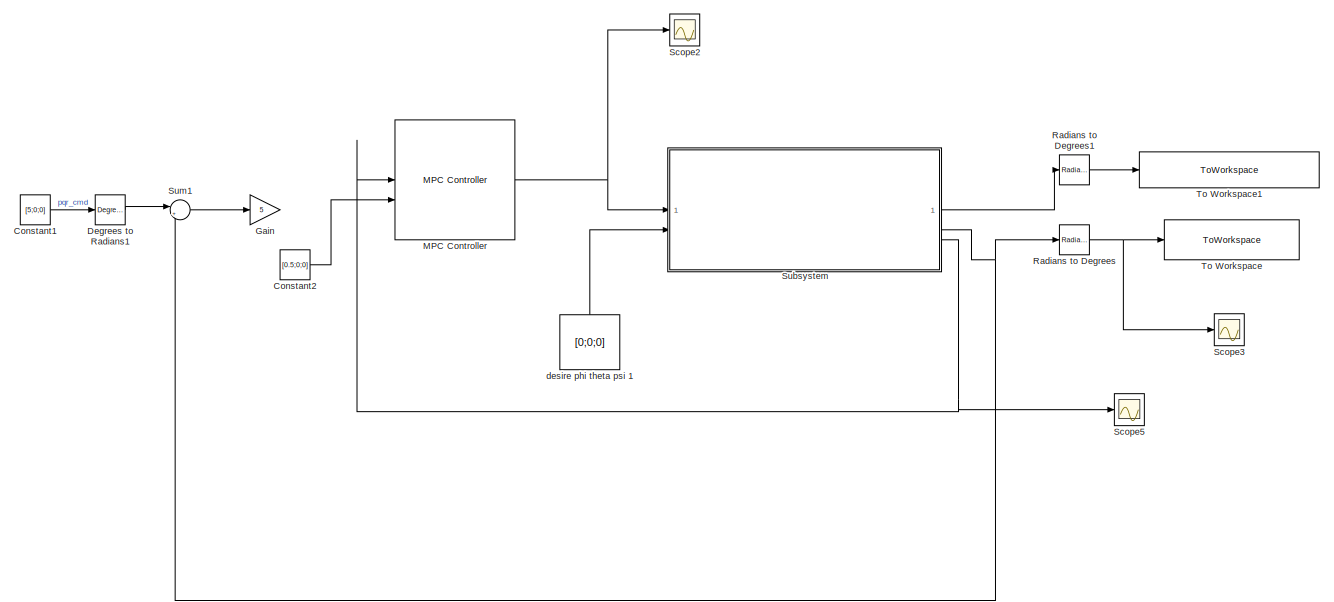
[diagram: root canvas - part 1/2, top left region]
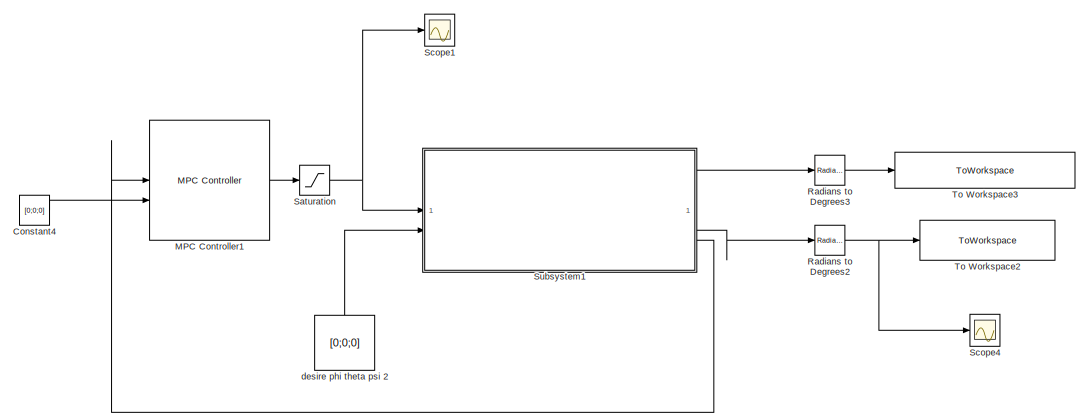
[diagram: root canvas - part 2/2, bottom right region]
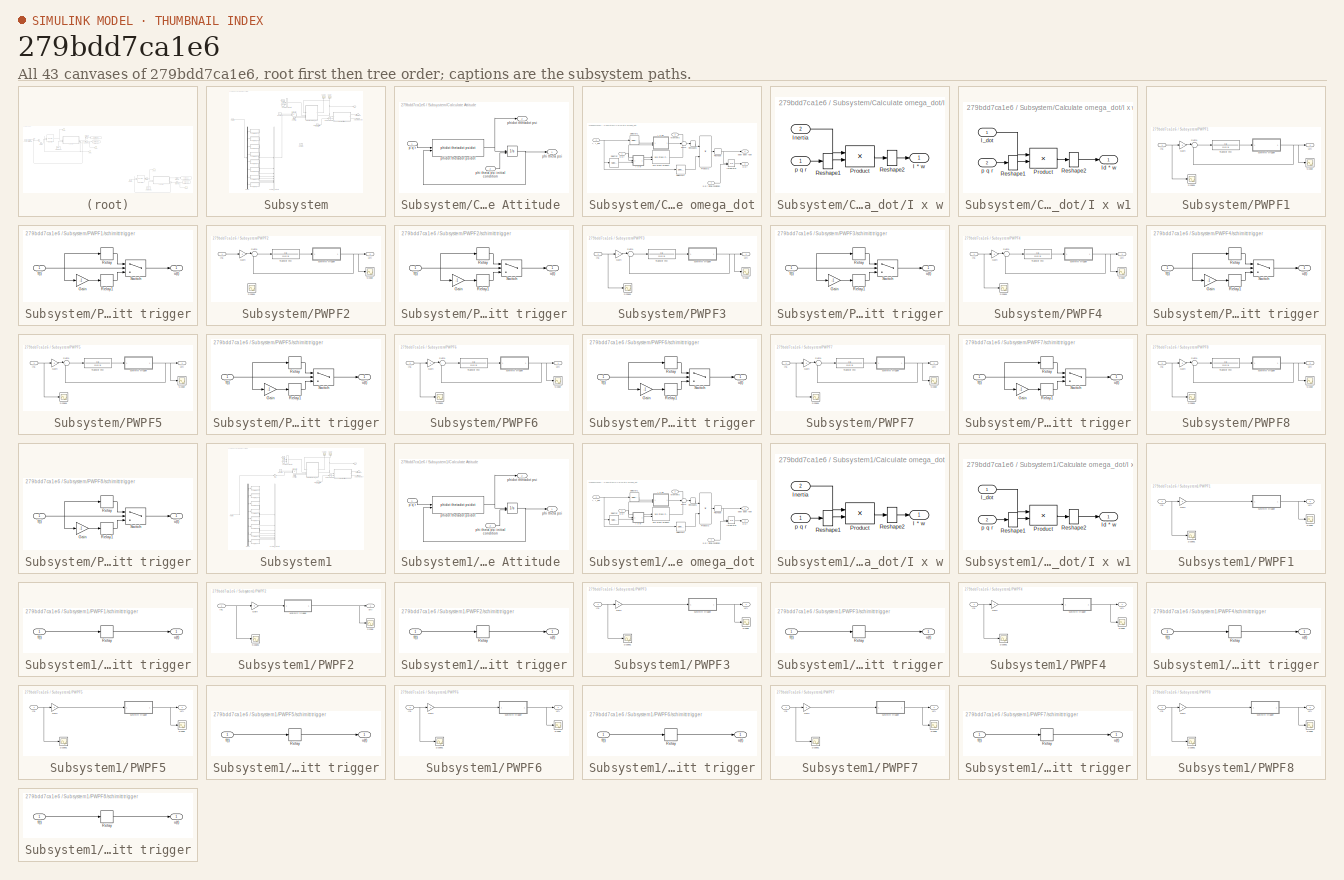
[diagram: thumbnail index - all 43 canvases of the model, root first then tree order]
MODEL slx_279bdd7ca1e6
KIND model
CONFIG AbsTol = auto
CONFIG EnableMultiTasking = off
CONFIG FixedStep = auto
CONFIG MaxStep = auto
CONFIG MinStep = auto
CONFIG RelTol = 1e-3
CONFIG SampleTimeConstraint = Unconstrained
CONFIG SolverName = VariableStepAuto
CONFIG StartTime = 0.0
CONFIG StopTime = 10.0
BLOCK [Constant] Constant1
  Commented = on
  Value = [5;0;0]
BLOCK [Constant] Constant2
  Commented = on
  Value = [0.5;0;0]
BLOCK [Constant] Constant4
  Value = [0;0;0]
BLOCK [Reference] Degrees to Radians1  REF=simulink_extras/Transformations/Degrees to
Radians
  Commented = on
  SourceBlock = simulink_extras/Transformations/Degrees to\nRadians
  SourceType = DegreesToRadians
BLOCK [Gain] Gain
  Commented = on
  Gain = 5
BLOCK [Reference] MPC Controller  REF=mpclib/MPC Controller  (lib defined in mdl_ae329e0e0455)
  Commented = on
  SCDEnableBlockLinearizationSpecification = on
  SourceBlock = mpclib/MPC Controller
  SourceType = MPC
BLOCK [Reference] MPC Controller1  REF=mpclib/MPC Controller  (lib defined in mdl_ae329e0e0455)
  SCDEnableBlockLinearizationSpecification = on
  SourceBlock = mpclib/MPC Controller
  SourceType = MPC
BLOCK [Reference] Radians to Degrees  REF=simulink_extras/Transformations/Radians
to Degrees
  Commented = on
  SourceBlock = simulink_extras/Transformations/Radians\nto Degrees
  SourceType = RadiansToDegrees
BLOCK [Reference] Radians to Degrees1  REF=simulink_extras/Transformations/Radians
to Degrees
  Commented = on
  SourceBlock = simulink_extras/Transformations/Radians\nto Degrees
  SourceType = RadiansToDegrees
BLOCK [Reference] Radians to Degrees2  REF=simulink_extras/Transformations/Radians
to Degrees
  SourceBlock = simulink_extras/Transformations/Radians\nto Degrees
  SourceType = RadiansToDegrees
BLOCK [Reference] Radians to Degrees3  REF=simulink_extras/Transformations/Radians
to Degrees
  SourceBlock = simulink_extras/Transformations/Radians\nto Degrees
  SourceType = RadiansToDegrees
BLOCK [Saturate] Saturation
  LowerLimit = 0
  UpperLimit = 10
BLOCK [Scope] Scope1
  Floating = off
  NumInputPorts = 1
  ScopeSpecificationString = Simulink.scopes.TimeScopeBlockCfg('CurrentConfiguration', extmgr.ConfigurationSet(extmgr.Configuration('Core','General UI',true),extmgr.Configuration('Core','Source UI',true),extmgr.Configuration('Sources','WiredSimulink',true,'DataLoggingVariableName','ScopeData3'),extmgr.Configuration('Visuals','Time Domain',true,'SerializedDisplays',{struct('MinYLimReal','-1.00000','MaxYLimReal','1.00000','YLab...<+1552ch>
BLOCK [Scope] Scope2
  Commented = on
  Floating = off
  NumInputPorts = 1
  ScopeSpecificationString = Simulink.scopes.TimeScopeBlockCfg('CurrentConfiguration', extmgr.ConfigurationSet(extmgr.Configuration('Core','General UI',true),extmgr.Configuration('Core','Source UI',true),extmgr.Configuration('Sources','WiredSimulink',true,'DataLoggingVariableName','ScopeData1'),extmgr.Configuration('Visuals','Time Domain',true,'SerializedDisplays',{struct('MinYLimReal','-0.87303','MaxYLimReal','7.85725','YLab...<+1533ch>
BLOCK [Scope] Scope3
  Commented = on
  Floating = off
  NumInputPorts = 1
  ScopeSpecificationString = Simulink.scopes.TimeScopeBlockCfg('CurrentConfiguration', extmgr.ConfigurationSet(extmgr.Configuration('Core','General UI',true),extmgr.Configuration('Core','Source UI',true),extmgr.Configuration('Sources','WiredSimulink',true,'DataLoggingVariableName','ScopeData2'),extmgr.Configuration('Visuals','Time Domain',true,'SerializedDisplays',{struct('MinYLimReal','-605.50818','MaxYLimReal','113.08721','...<+1437ch>
BLOCK [Scope] Scope4
  Floating = off
  NumInputPorts = 1
  ScopeSpecificationString = Simulink.scopes.TimeScopeBlockCfg('CurrentConfiguration', extmgr.ConfigurationSet(extmgr.Configuration('Core','General UI',true),extmgr.Configuration('Core','Source UI',true),extmgr.Configuration('Sources','WiredSimulink',true,'DataLoggingVariableName','ScopeData6'),extmgr.Configuration('Visuals','Time Domain',true,'SerializedDisplays',{struct('MinYLimReal','-1.00000','MaxYLimReal','1.00000','YLab...<+1449ch>
BLOCK [Scope] Scope5
  Commented = on
  Floating = off
  NumInputPorts = 1
  ScopeSpecificationString = Simulink.scopes.TimeScopeBlockCfg('CurrentConfiguration', extmgr.ConfigurationSet(extmgr.Configuration('Core','General UI',true),extmgr.Configuration('Core','Source UI',true),extmgr.Configuration('Sources','WiredSimulink',true,'DataLoggingVariableName','ScopeData7'),extmgr.Configuration('Visuals','Time Domain',true,'SerializedDisplays',{struct('MinYLimReal','-1.30494','MaxYLimReal','1.33719','YLab...<+1431ch>
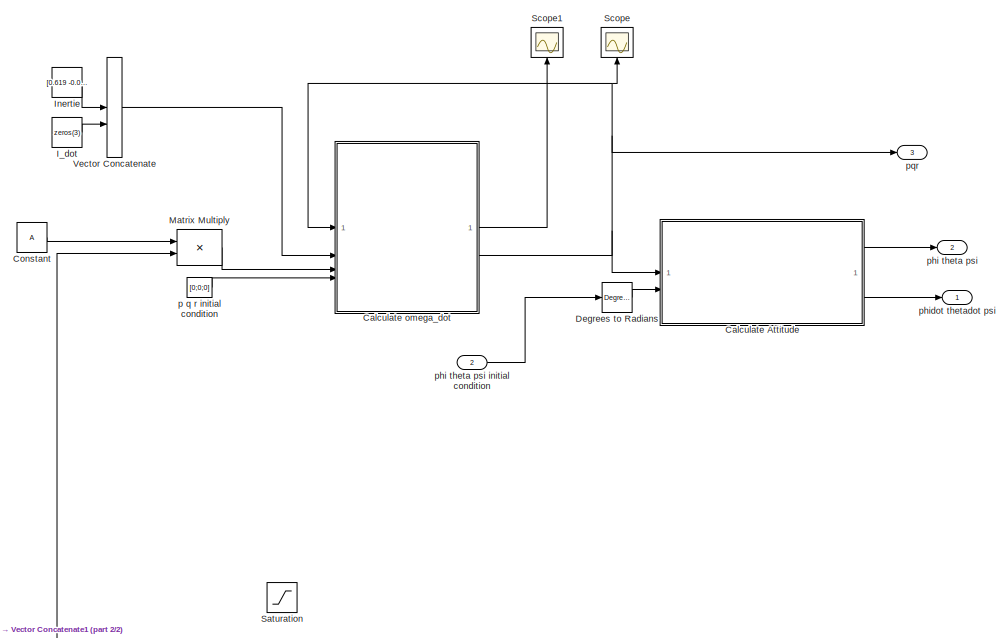
[diagram: Subsystem - part 1/2, top right region]
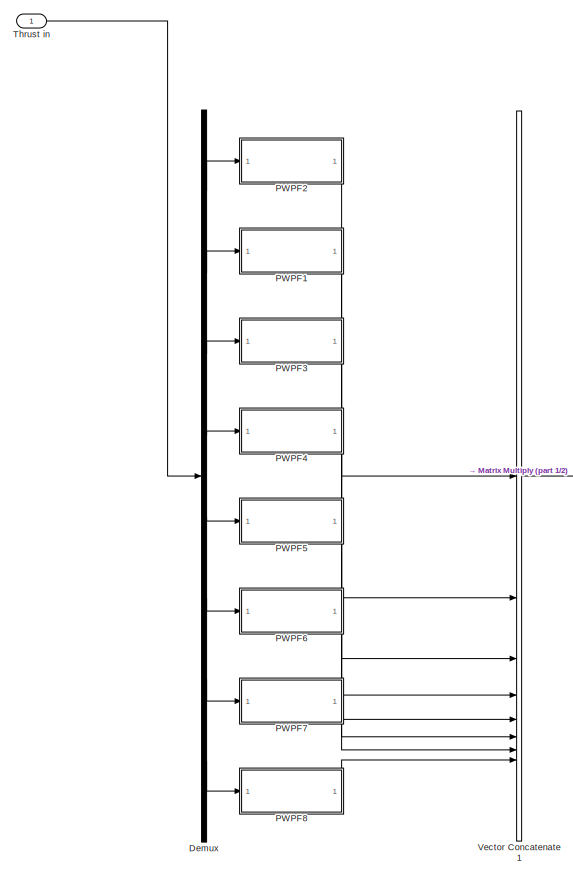
[diagram: Subsystem - part 2/2, left side, full height]
BLOCK [SubSystem] Subsystem
  Commented = on
BLOCK [Constant] Subsystem/ p q r initial condition
  Value = [0;0;0]
BLOCK [Outport] Subsystem/ pqr
  Port = 3
BLOCK [SubSystem] Subsystem/Calculate Attitude 
BLOCK [Integrator] Subsystem/Calculate Attitude / 
  InitialConditionSource = external
BLOCK [Inport] Subsystem/Calculate Attitude /p q r
BLOCK [Outport] Subsystem/Calculate Attitude /phi theta psi 
BLOCK [Inport] Subsystem/Calculate Attitude /phi theta psi initial condition 
  Port = 2
BLOCK [Outport] Subsystem/Calculate Attitude /phidot thetadot psi
  Port = 2
BLOCK [Reference] Subsystem/Calculate Attitude /phidot thetadot psidot  REF=shared6dofsys/DCM & Euler Angles (Euler)/phidot  (lib defined in slx_91fbb8bad28b)
thetadot
psidot
  SourceBlock = shared6dofsys/DCM & Euler Angles (Euler)/phidot\nthetadot\npsidot
  SourceType = SubSystem
BLOCK [SubSystem] Subsystem/Calculate omega_dot
  AncestorBlock = shared6dofsys/Calculate omega_dot
  LibrarySourceBlock = shared6dofsys/Calculate omega_dot
  PermitHierarchicalResolution = ExplicitOnly
BLOCK [Reference] Subsystem/Calculate omega_dot/3x3 Cross Product  REF=sharedutil/3x3 Cross Product
  SourceBlock = sharedutil/3x3 Cross Product
  SourceType = CrossProduct
BLOCK [SubSystem] Subsystem/Calculate omega_dot/I x w
  NameLocation = top
BLOCK [Outport] Subsystem/Calculate omega_dot/I x w/I * w
  VectorParamsAs1DForOutWhenUnconnected = off
BLOCK [Inport] Subsystem/Calculate omega_dot/I x w/Inertia
  Port = 2
BLOCK [Product] Subsystem/Calculate omega_dot/I x w/Product
  InputSameDT = on
  Multiplication = Matrix(*)
  OutDataTypeStr = Inherit: Same as first input
  SaturateOnIntegerOverflow = on
BLOCK [Reshape] Subsystem/Calculate omega_dot/I x w/Reshape1
  OutputDimensionality = Column vector (2-D)
BLOCK [Reshape] Subsystem/Calculate omega_dot/I x w/Reshape2
BLOCK [Inport] Subsystem/Calculate omega_dot/I x w/p q r
BLOCK [SubSystem] Subsystem/Calculate omega_dot/I x w1
  NameLocation = top
BLOCK [Inport] Subsystem/Calculate omega_dot/I x w1/I_dot
BLOCK [Outport] Subsystem/Calculate omega_dot/I x w1/Id * w
  VectorParamsAs1DForOutWhenUnconnected = off
BLOCK [Product] Subsystem/Calculate omega_dot/I x w1/Product
  InputSameDT = on
  Multiplication = Matrix(*)
  OutDataTypeStr = Inherit: Same as first input
  SaturateOnIntegerOverflow = on
BLOCK [Reshape] Subsystem/Calculate omega_dot/I x w1/Reshape1
  OutputDimensionality = Column vector (2-D)
BLOCK [Reshape] Subsystem/Calculate omega_dot/I x w1/Reshape2
BLOCK [Inport] Subsystem/Calculate omega_dot/I x w1/p q r
  Port = 2
BLOCK [Inport] Subsystem/Calculate omega_dot/I, I_dot
  OutDataTypeStr = double
  Port = 2
BLOCK [Integrator] Subsystem/Calculate omega_dot/Integrator
  InitialConditionSource = external
BLOCK [Inport] Subsystem/Calculate omega_dot/Moments
  OutDataTypeStr = double
  Port = 3
BLOCK [Product] Subsystem/Calculate omega_dot/Product2
  Inputs = */
  Multiplication = Matrix(*)
  NameLocation = top
  OutDataTypeStr = Inherit: Same as first input
  SaturateOnIntegerOverflow = on
BLOCK [Reshape] Subsystem/Calculate omega_dot/Reshape
BLOCK [Reshape] Subsystem/Calculate omega_dot/Reshape1
  OutputDimensionality = Row vector (2-D)
BLOCK [Selector] Subsystem/Calculate omega_dot/Selector
  IndexOptions = Index vector (dialog),Select all
  Indices = 1:3,-1
  InputPortWidth = 2
  NumberOfDimensions = 2
  OutputSizes = 1
BLOCK [Selector] Subsystem/Calculate omega_dot/Selector1
  IndexOptions = Index vector (dialog),Select all
  Indices = 4:6,-1
  InputPortWidth = 2
  NumberOfDimensions = 2
  OutputSizes = 1
BLOCK [Selector] Subsystem/Calculate omega_dot/Selector2
  IndexOptions = Index vector (dialog),Select all
  Indices = 1:3,-1
  InputPortWidth = 2
  NumberOfDimensions = 2
  OutputSizes = 1
BLOCK [Sum] Subsystem/Calculate omega_dot/Sum2
  Inputs = +--
  SaturateOnIntegerOverflow = on
BLOCK [Outport] Subsystem/Calculate omega_dot/p q  r
  Port = 2
BLOCK [Inport] Subsystem/Calculate omega_dot/p q r
  OutDataTypeStr = double
BLOCK [Inport] Subsystem/Calculate omega_dot/p q r initial condition
  Port = 4
BLOCK [Outport] Subsystem/Calculate omega_dot/pdot qdot rdot
  OutDataTypeStr = double
  VectorParamsAs1DForOutWhenUnconnected = off
BLOCK [Constant] Subsystem/Constant
  Value = A
BLOCK [Reference] Subsystem/Degrees to Radians  REF=simulink_extras/Transformations/Degrees to
Radians
  SourceBlock = simulink_extras/Transformations/Degrees to\nRadians
  SourceType = DegreesToRadians
BLOCK [Demux] Subsystem/Demux
  Outputs = 8
BLOCK [Constant] Subsystem/I_dot
  Value = zeros(3)
BLOCK [Constant] Subsystem/Inertie
  Value = [0.619 -0.008 0;-0.008 0.782 0;0 0 1.226]
BLOCK [Product] Subsystem/Matrix Multiply
  Multiplication = Matrix(*)
BLOCK [SubSystem] Subsystem/PWPF1
BLOCK [Gain] Subsystem/PWPF1/Gain
  Gain = 4
BLOCK [Inport] Subsystem/PWPF1/In1
BLOCK [Scope] Subsystem/PWPF1/Scope
  Floating = off
  NumInputPorts = 1
  ScopeSpecificationString = Simulink.scopes.TimeScopeBlockCfg('CurrentConfiguration', extmgr.ConfigurationSet(extmgr.Configuration('Core','General UI',true),extmgr.Configuration('Core','Source UI',true),extmgr.Configuration('Sources','WiredSimulink',true,'DataLoggingVariableName','ScopeData4'),extmgr.Configuration('Visuals','Time Domain',true,'SerializedDisplays',{struct('MinYLimReal','-1.00000','MaxYLimReal','1.00000','YLab...<+1431ch>  <repeated x15 — deduplicated; at blocks: Scope>
BLOCK [Scope] Subsystem/PWPF1/Scope1
  Floating = off
  NumInputPorts = 1
  ScopeSpecificationString = Simulink.scopes.TimeScopeBlockCfg('CurrentConfiguration', extmgr.ConfigurationSet(extmgr.Configuration('Core','General UI',true),extmgr.Configuration('Core','Source UI',true),extmgr.Configuration('Sources','WiredSimulink',true,'DataLoggingVariableName','ScopeData5'),extmgr.Configuration('Visuals','Time Domain',true,'SerializedDisplays',{struct('MinYLimReal','0.00299','MaxYLimReal','0.05632','YLabe...<+1390ch>  <repeated x7 — deduplicated; at blocks: Scope1>
BLOCK [Sum] Subsystem/PWPF1/Sum1
  Inputs = |+-
BLOCK [TransferFcn] Subsystem/PWPF1/Transfer Fcn
  Denominator = [0.5 1]
BLOCK [SubSystem] Subsystem/PWPF1/schimitt trigger
BLOCK [Gain] Subsystem/PWPF1/schimitt trigger/Gain
  Gain = -1
BLOCK [Relay] Subsystem/PWPF1/schimitt trigger/Relay
  OffSwitchValue = 0.15
  OnOutputValue = 10
  OnSwitchValue = 0.45
BLOCK [Relay] Subsystem/PWPF1/schimitt trigger/Relay1
  OffSwitchValue = 0.15
  OnOutputValue = -10
  OnSwitchValue = 0.45
BLOCK [Switch] Subsystem/PWPF1/schimitt trigger/Switch
  Criteria = u2 > Threshold
  InputSameDT = off
  SaturateOnIntegerOverflow = off
BLOCK [Inport] Subsystem/PWPF1/schimitt trigger/f(t)
BLOCK [Outport] Subsystem/PWPF1/schimitt trigger/u(t)
BLOCK [Outport] Subsystem/PWPF1/u(t)
BLOCK [SubSystem] Subsystem/PWPF2
BLOCK [Gain] Subsystem/PWPF2/Gain
  Gain = 4
BLOCK [Inport] Subsystem/PWPF2/In1
BLOCK [Scope] Subsystem/PWPF2/Scope
  Floating = off
  NumInputPorts = 1
  ScopeSpecificationString = Simulink.scopes.TimeScopeBlockCfg('CurrentConfiguration', extmgr.ConfigurationSet(extmgr.Configuration('Core','General UI',true),extmgr.Configuration('Core','Source UI',true),extmgr.Configuration('Sources','WiredSimulink',true,'DataLoggingVariableName','ScopeData4'),extmgr.Configuration('Visuals','Time Domain',true,'SerializedDisplays',{struct('MinYLimReal','-1.25','MaxYLimReal','11.25','YLabelRea...<+1391ch>
BLOCK [Scope] Subsystem/PWPF2/Scope1
  Floating = off
  NumInputPorts = 1
  ScopeSpecificationString = Simulink.scopes.TimeScopeBlockCfg('CurrentConfiguration', extmgr.ConfigurationSet(extmgr.Configuration('Core','General UI',true),extmgr.Configuration('Core','Source UI',true),extmgr.Configuration('Sources','WiredSimulink',true,'DataLoggingVariableName','ScopeData5'),extmgr.Configuration('Visuals','Time Domain',true,'SerializedDisplays',{struct('MinYLimReal','0.00339','MaxYLimReal','0.92343','YLabe...<+1390ch>
BLOCK [Sum] Subsystem/PWPF2/Sum1
  Inputs = |+-
BLOCK [TransferFcn] Subsystem/PWPF2/Transfer Fcn
  Denominator = [0.5 1]
BLOCK [SubSystem] Subsystem/PWPF2/schimitt trigger
BLOCK [Gain] Subsystem/PWPF2/schimitt trigger/Gain
  Gain = -1
BLOCK [Relay] Subsystem/PWPF2/schimitt trigger/Relay
  OffSwitchValue = 0.15
  OnOutputValue = 10
  OnSwitchValue = 0.45
BLOCK [Relay] Subsystem/PWPF2/schimitt trigger/Relay1
  OffSwitchValue = 0.15
  OnOutputValue = -10
  OnSwitchValue = 0.45
BLOCK [Switch] Subsystem/PWPF2/schimitt trigger/Switch
  Criteria = u2 > Threshold
  InputSameDT = off
  SaturateOnIntegerOverflow = off
BLOCK [Inport] Subsystem/PWPF2/schimitt trigger/f(t)
BLOCK [Outport] Subsystem/PWPF2/schimitt trigger/u(t)
BLOCK [Outport] Subsystem/PWPF2/u(t)
BLOCK [SubSystem] Subsystem/PWPF3
BLOCK [Gain] Subsystem/PWPF3/Gain
  Gain = 4
BLOCK [Inport] Subsystem/PWPF3/In1
BLOCK [Scope] Subsystem/PWPF3/Scope
  Floating = off
  NumInputPorts = 1
BLOCK [Scope] Subsystem/PWPF3/Scope1
  Floating = off
  NumInputPorts = 1
BLOCK [Sum] Subsystem/PWPF3/Sum1
  Inputs = |+-
BLOCK [TransferFcn] Subsystem/PWPF3/Transfer Fcn
  Denominator = [0.5 1]
BLOCK [SubSystem] Subsystem/PWPF3/schimitt trigger
BLOCK [Gain] Subsystem/PWPF3/schimitt trigger/Gain
  Gain = -1
BLOCK [Relay] Subsystem/PWPF3/schimitt trigger/Relay
  OffSwitchValue = 0.15
  OnOutputValue = 10
  OnSwitchValue = 0.45
BLOCK [Relay] Subsystem/PWPF3/schimitt trigger/Relay1
  OffSwitchValue = 0.15
  OnOutputValue = -10
  OnSwitchValue = 0.45
BLOCK [Switch] Subsystem/PWPF3/schimitt trigger/Switch
  Criteria = u2 > Threshold
  InputSameDT = off
  SaturateOnIntegerOverflow = off
BLOCK [Inport] Subsystem/PWPF3/schimitt trigger/f(t)
BLOCK [Outport] Subsystem/PWPF3/schimitt trigger/u(t)
BLOCK [Outport] Subsystem/PWPF3/u(t)
BLOCK [SubSystem] Subsystem/PWPF4
BLOCK [Gain] Subsystem/PWPF4/Gain
  Gain = 4
BLOCK [Inport] Subsystem/PWPF4/In1
BLOCK [Scope] Subsystem/PWPF4/Scope
  Floating = off
  NumInputPorts = 1
BLOCK [Scope] Subsystem/PWPF4/Scope1
  Floating = off
  NumInputPorts = 1
BLOCK [Sum] Subsystem/PWPF4/Sum1
  Inputs = |+-
BLOCK [TransferFcn] Subsystem/PWPF4/Transfer Fcn
  Denominator = [0.5 1]
BLOCK [SubSystem] Subsystem/PWPF4/schimitt trigger
BLOCK [Gain] Subsystem/PWPF4/schimitt trigger/Gain
  Gain = -1
BLOCK [Relay] Subsystem/PWPF4/schimitt trigger/Relay
  OffSwitchValue = 0.15
  OnOutputValue = 10
  OnSwitchValue = 0.45
BLOCK [Relay] Subsystem/PWPF4/schimitt trigger/Relay1
  OffSwitchValue = 0.15
  OnOutputValue = -10
  OnSwitchValue = 0.45
BLOCK [Switch] Subsystem/PWPF4/schimitt trigger/Switch
  Criteria = u2 > Threshold
  InputSameDT = off
  SaturateOnIntegerOverflow = off
BLOCK [Inport] Subsystem/PWPF4/schimitt trigger/f(t)
BLOCK [Outport] Subsystem/PWPF4/schimitt trigger/u(t)
BLOCK [Outport] Subsystem/PWPF4/u(t)
BLOCK [SubSystem] Subsystem/PWPF5
BLOCK [Gain] Subsystem/PWPF5/Gain
  Gain = 4
BLOCK [Inport] Subsystem/PWPF5/In1
BLOCK [Scope] Subsystem/PWPF5/Scope
  Floating = off
  NumInputPorts = 1
BLOCK [Scope] Subsystem/PWPF5/Scope1
  Floating = off
  NumInputPorts = 1
BLOCK [Sum] Subsystem/PWPF5/Sum1
  Inputs = |+-
BLOCK [TransferFcn] Subsystem/PWPF5/Transfer Fcn
  Denominator = [0.5 1]
BLOCK [SubSystem] Subsystem/PWPF5/schimitt trigger
BLOCK [Gain] Subsystem/PWPF5/schimitt trigger/Gain
  Gain = -1
BLOCK [Relay] Subsystem/PWPF5/schimitt trigger/Relay
  OffSwitchValue = 0.15
  OnOutputValue = 10
  OnSwitchValue = 0.45
BLOCK [Relay] Subsystem/PWPF5/schimitt trigger/Relay1
  OffSwitchValue = 0.15
  OnOutputValue = -10
  OnSwitchValue = 0.45
BLOCK [Switch] Subsystem/PWPF5/schimitt trigger/Switch
  Criteria = u2 > Threshold
  InputSameDT = off
  SaturateOnIntegerOverflow = off
BLOCK [Inport] Subsystem/PWPF5/schimitt trigger/f(t)
BLOCK [Outport] Subsystem/PWPF5/schimitt trigger/u(t)
BLOCK [Outport] Subsystem/PWPF5/u(t)
BLOCK [SubSystem] Subsystem/PWPF6
BLOCK [Gain] Subsystem/PWPF6/Gain
  Gain = 4
BLOCK [Inport] Subsystem/PWPF6/In1
BLOCK [Scope] Subsystem/PWPF6/Scope
  Floating = off
  NumInputPorts = 1
BLOCK [Scope] Subsystem/PWPF6/Scope1
  Floating = off
  NumInputPorts = 1
BLOCK [Sum] Subsystem/PWPF6/Sum1
  Inputs = |+-
BLOCK [TransferFcn] Subsystem/PWPF6/Transfer Fcn
  Denominator = [0.5 1]
BLOCK [SubSystem] Subsystem/PWPF6/schimitt trigger
BLOCK [Gain] Subsystem/PWPF6/schimitt trigger/Gain
  Gain = -1
BLOCK [Relay] Subsystem/PWPF6/schimitt trigger/Relay
  OffSwitchValue = 0.15
  OnOutputValue = 10
  OnSwitchValue = 0.45
BLOCK [Relay] Subsystem/PWPF6/schimitt trigger/Relay1
  OffSwitchValue = 0.15
  OnOutputValue = -10
  OnSwitchValue = 0.45
BLOCK [Switch] Subsystem/PWPF6/schimitt trigger/Switch
  Criteria = u2 > Threshold
  InputSameDT = off
  SaturateOnIntegerOverflow = off
BLOCK [Inport] Subsystem/PWPF6/schimitt trigger/f(t)
BLOCK [Outport] Subsystem/PWPF6/schimitt trigger/u(t)
BLOCK [Outport] Subsystem/PWPF6/u(t)
BLOCK [SubSystem] Subsystem/PWPF7
BLOCK [Gain] Subsystem/PWPF7/Gain
  Gain = 4
BLOCK [Inport] Subsystem/PWPF7/In1
BLOCK [Scope] Subsystem/PWPF7/Scope
  Floating = off
  NumInputPorts = 1
BLOCK [Scope] Subsystem/PWPF7/Scope1
  Floating = off
  NumInputPorts = 1
BLOCK [Sum] Subsystem/PWPF7/Sum1
  Inputs = |+-
BLOCK [TransferFcn] Subsystem/PWPF7/Transfer Fcn
  Denominator = [0.5 1]
BLOCK [SubSystem] Subsystem/PWPF7/schimitt trigger
BLOCK [Gain] Subsystem/PWPF7/schimitt trigger/Gain
  Gain = -1
BLOCK [Relay] Subsystem/PWPF7/schimitt trigger/Relay
  OffSwitchValue = 0.15
  OnOutputValue = 10
  OnSwitchValue = 0.45
BLOCK [Relay] Subsystem/PWPF7/schimitt trigger/Relay1
  OffSwitchValue = 0.15
  OnOutputValue = -10
  OnSwitchValue = 0.45
BLOCK [Switch] Subsystem/PWPF7/schimitt trigger/Switch
  Criteria = u2 > Threshold
  InputSameDT = off
  SaturateOnIntegerOverflow = off
BLOCK [Inport] Subsystem/PWPF7/schimitt trigger/f(t)
BLOCK [Outport] Subsystem/PWPF7/schimitt trigger/u(t)
BLOCK [Outport] Subsystem/PWPF7/u(t)
BLOCK [SubSystem] Subsystem/PWPF8
BLOCK [Gain] Subsystem/PWPF8/Gain
  Gain = 4
BLOCK [Inport] Subsystem/PWPF8/In1
BLOCK [Scope] Subsystem/PWPF8/Scope
  Floating = off
  NumInputPorts = 1
BLOCK [Scope] Subsystem/PWPF8/Scope1
  Floating = off
  NumInputPorts = 1
BLOCK [Sum] Subsystem/PWPF8/Sum1
  Inputs = |+-
BLOCK [TransferFcn] Subsystem/PWPF8/Transfer Fcn
  Denominator = [0.5 1]
BLOCK [SubSystem] Subsystem/PWPF8/schimitt trigger
BLOCK [Gain] Subsystem/PWPF8/schimitt trigger/Gain
  Gain = -1
BLOCK [Relay] Subsystem/PWPF8/schimitt trigger/Relay
  OffSwitchValue = 0.15
  OnOutputValue = 10
  OnSwitchValue = 0.45
BLOCK [Relay] Subsystem/PWPF8/schimitt trigger/Relay1
  OffSwitchValue = 0.15
  OnOutputValue = -10
  OnSwitchValue = 0.45
BLOCK [Switch] Subsystem/PWPF8/schimitt trigger/Switch
  Criteria = u2 > Threshold
  InputSameDT = off
  SaturateOnIntegerOverflow = off
BLOCK [Inport] Subsystem/PWPF8/schimitt trigger/f(t)
BLOCK [Outport] Subsystem/PWPF8/schimitt trigger/u(t)
BLOCK [Outport] Subsystem/PWPF8/u(t)
BLOCK [Saturate] Subsystem/Saturation
BLOCK [Scope] Subsystem/Scope
  Commented = on
  Floating = off
  NameLocation = right
  NumInputPorts = 1
  ScopeSpecificationString = Simulink.scopes.TimeScopeBlockCfg('CurrentConfiguration', extmgr.ConfigurationSet(extmgr.Configuration('Core','General UI',true),extmgr.Configuration('Core','Source UI',true),extmgr.Configuration('Sources','WiredSimulink',true),extmgr.Configuration('Visuals','Time Domain',true,'SerializedDisplays',{struct('MinYLimReal','-0.03752','MaxYLimReal','0.3375','YLabelReal','','MinYLimMag','0.00000','MaxYL...<+1420ch>
BLOCK [Scope] Subsystem/Scope1
  Floating = off
  NameLocation = right
  NumInputPorts = 1
  ScopeSpecificationString = Simulink.scopes.TimeScopeBlockCfg('CurrentConfiguration', extmgr.ConfigurationSet(extmgr.Configuration('Core','General UI',true),extmgr.Configuration('Core','Source UI',true),extmgr.Configuration('Sources','WiredSimulink',true,'DataLoggingVariableName','ScopeData3'),extmgr.Configuration('Visuals','Time Domain',true,'SerializedDisplays',{struct('MinYLimReal','-11.23403','MaxYLimReal','1.33153','YLa...<+1467ch>
BLOCK [Inport] Subsystem/Thrust in
BLOCK [Concatenate] Subsystem/Vector Concatenate
  Mode = Multidimensional array
BLOCK [Concatenate] Subsystem/Vector Concatenate1
  NumInputs = 8
BLOCK [Outport] Subsystem/phi theta psi 
  Port = 2
BLOCK [Inport] Subsystem/phi theta psi initial condition 
  Port = 2
BLOCK [Outport] Subsystem/phidot thetadot psi
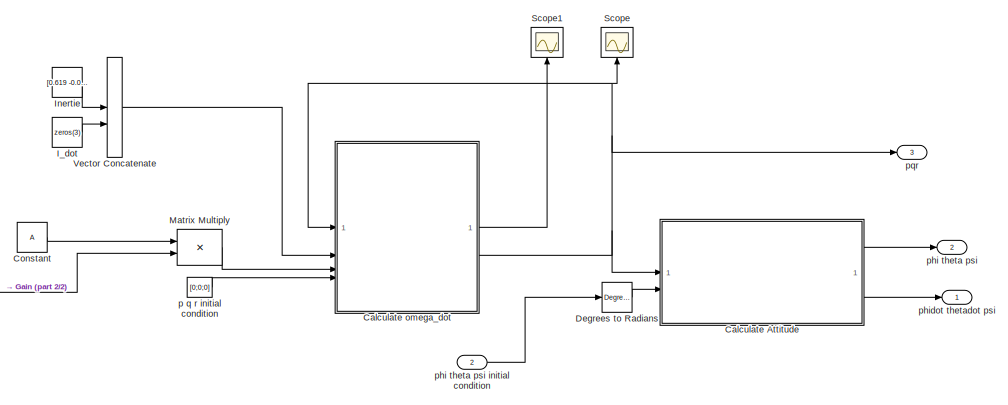
[diagram: Subsystem1 - part 1/2, top right region]
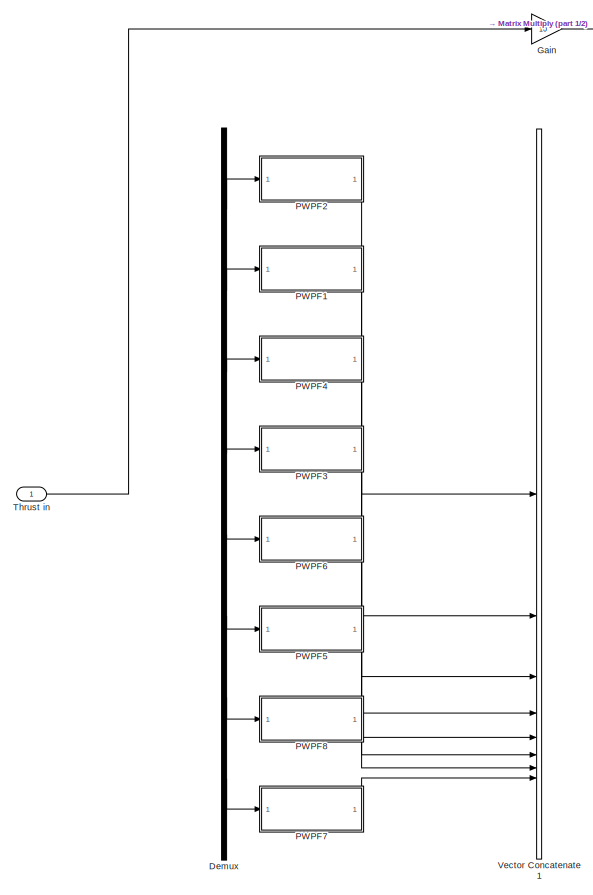
[diagram: Subsystem1 - part 2/2, left side, full height]
BLOCK [SubSystem] Subsystem1
BLOCK [Constant] Subsystem1/ p q r initial condition
  Value = [0;0;0]
BLOCK [Outport] Subsystem1/ pqr
  Port = 3
BLOCK [SubSystem] Subsystem1/Calculate Attitude 
BLOCK [Integrator] Subsystem1/Calculate Attitude / 
  InitialConditionSource = external
BLOCK [Inport] Subsystem1/Calculate Attitude /p q r
BLOCK [Outport] Subsystem1/Calculate Attitude /phi theta psi 
BLOCK [Inport] Subsystem1/Calculate Attitude /phi theta psi initial condition 
  Port = 2
BLOCK [Outport] Subsystem1/Calculate Attitude /phidot thetadot psi
  Port = 2
BLOCK [Reference] Subsystem1/Calculate Attitude /phidot thetadot psidot  REF=shared6dofsys/DCM & Euler Angles (Euler)/phidot  (lib defined in slx_91fbb8bad28b)
thetadot
psidot
  SourceBlock = shared6dofsys/DCM & Euler Angles (Euler)/phidot\nthetadot\npsidot
  SourceType = SubSystem
BLOCK [SubSystem] Subsystem1/Calculate omega_dot
  AncestorBlock = shared6dofsys/Calculate omega_dot
  LibrarySourceBlock = shared6dofsys/Calculate omega_dot
  PermitHierarchicalResolution = ExplicitOnly
BLOCK [Reference] Subsystem1/Calculate omega_dot/3x3 Cross Product  REF=sharedutil/3x3 Cross Product
  SourceBlock = sharedutil/3x3 Cross Product
  SourceType = CrossProduct
BLOCK [SubSystem] Subsystem1/Calculate omega_dot/I x w
  NameLocation = top
BLOCK [Outport] Subsystem1/Calculate omega_dot/I x w/I * w
  VectorParamsAs1DForOutWhenUnconnected = off
BLOCK [Inport] Subsystem1/Calculate omega_dot/I x w/Inertia
  Port = 2
BLOCK [Product] Subsystem1/Calculate omega_dot/I x w/Product
  InputSameDT = on
  Multiplication = Matrix(*)
  OutDataTypeStr = Inherit: Same as first input
  SaturateOnIntegerOverflow = on
BLOCK [Reshape] Subsystem1/Calculate omega_dot/I x w/Reshape1
  OutputDimensionality = Column vector (2-D)
BLOCK [Reshape] Subsystem1/Calculate omega_dot/I x w/Reshape2
BLOCK [Inport] Subsystem1/Calculate omega_dot/I x w/p q r
BLOCK [SubSystem] Subsystem1/Calculate omega_dot/I x w1
  NameLocation = top
BLOCK [Inport] Subsystem1/Calculate omega_dot/I x w1/I_dot
BLOCK [Outport] Subsystem1/Calculate omega_dot/I x w1/Id * w
  VectorParamsAs1DForOutWhenUnconnected = off
BLOCK [Product] Subsystem1/Calculate omega_dot/I x w1/Product
  InputSameDT = on
  Multiplication = Matrix(*)
  OutDataTypeStr = Inherit: Same as first input
  SaturateOnIntegerOverflow = on
BLOCK [Reshape] Subsystem1/Calculate omega_dot/I x w1/Reshape1
  OutputDimensionality = Column vector (2-D)
BLOCK [Reshape] Subsystem1/Calculate omega_dot/I x w1/Reshape2
BLOCK [Inport] Subsystem1/Calculate omega_dot/I x w1/p q r
  Port = 2
BLOCK [Inport] Subsystem1/Calculate omega_dot/I, I_dot
  OutDataTypeStr = double
  Port = 2
BLOCK [Integrator] Subsystem1/Calculate omega_dot/Integrator
  InitialConditionSource = external
BLOCK [Inport] Subsystem1/Calculate omega_dot/Moments
  OutDataTypeStr = double
  Port = 3
BLOCK [Product] Subsystem1/Calculate omega_dot/Product2
  Inputs = */
  Multiplication = Matrix(*)
  NameLocation = top
  OutDataTypeStr = Inherit: Same as first input
  SaturateOnIntegerOverflow = on
BLOCK [Reshape] Subsystem1/Calculate omega_dot/Reshape
BLOCK [Reshape] Subsystem1/Calculate omega_dot/Reshape1
  OutputDimensionality = Row vector (2-D)
BLOCK [Selector] Subsystem1/Calculate omega_dot/Selector
  IndexOptions = Index vector (dialog),Select all
  Indices = 1:3,-1
  InputPortWidth = 2
  NumberOfDimensions = 2
  OutputSizes = 1
BLOCK [Selector] Subsystem1/Calculate omega_dot/Selector1
  IndexOptions = Index vector (dialog),Select all
  Indices = 4:6,-1
  InputPortWidth = 2
  NumberOfDimensions = 2
  OutputSizes = 1
BLOCK [Selector] Subsystem1/Calculate omega_dot/Selector2
  IndexOptions = Index vector (dialog),Select all
  Indices = 1:3,-1
  InputPortWidth = 2
  NumberOfDimensions = 2
  OutputSizes = 1
BLOCK [Sum] Subsystem1/Calculate omega_dot/Sum2
  Inputs = +--
  SaturateOnIntegerOverflow = on
BLOCK [Outport] Subsystem1/Calculate omega_dot/p q  r
  Port = 2
BLOCK [Inport] Subsystem1/Calculate omega_dot/p q r
  OutDataTypeStr = double
BLOCK [Inport] Subsystem1/Calculate omega_dot/p q r initial condition
  Port = 4
BLOCK [Outport] Subsystem1/Calculate omega_dot/pdot qdot rdot
  OutDataTypeStr = double
  VectorParamsAs1DForOutWhenUnconnected = off
BLOCK [Constant] Subsystem1/Constant
  Value = A
BLOCK [Reference] Subsystem1/Degrees to Radians  REF=simulink_extras/Transformations/Degrees to
Radians
  SourceBlock = simulink_extras/Transformations/Degrees to\nRadians
  SourceType = DegreesToRadians
BLOCK [Demux] Subsystem1/Demux
  Commented = on
  Outputs = 8
BLOCK [Gain] Subsystem1/Gain
  Gain = 10
BLOCK [Constant] Subsystem1/I_dot
  Value = zeros(3)
BLOCK [Constant] Subsystem1/Inertie
  Value = [0.619 -0.008 0;-0.008 0.782 0;0 0 1.226]
BLOCK [Product] Subsystem1/Matrix Multiply
  Multiplication = Matrix(*)
BLOCK [SubSystem] Subsystem1/PWPF1
  Commented = on
BLOCK [Gain] Subsystem1/PWPF1/Gain
  Gain = 4
BLOCK [Inport] Subsystem1/PWPF1/In1
BLOCK [Scope] Subsystem1/PWPF1/Scope
  Floating = off
  NumInputPorts = 1
BLOCK [Scope] Subsystem1/PWPF1/Scope1
  Floating = off
  NumInputPorts = 1
  ScopeSpecificationString = Simulink.scopes.TimeScopeBlockCfg('CurrentConfiguration', extmgr.ConfigurationSet(extmgr.Configuration('Core','General UI',true),extmgr.Configuration('Core','Source UI',true),extmgr.Configuration('Sources','WiredSimulink',true,'DataLoggingVariableName','ScopeData5'),extmgr.Configuration('Visuals','Time Domain',true,'SerializedDisplays',{struct('MinYLimReal','-1.00000','MaxYLimReal','1.00000','YLab...<+1392ch>  <repeated x8 — deduplicated; at blocks: Scope1>
BLOCK [SubSystem] Subsystem1/PWPF1/schimitt trigger
BLOCK [Relay] Subsystem1/PWPF1/schimitt trigger/Relay
  OffSwitchValue = 0.15
  OnOutputValue = 10
  OnSwitchValue = 0.45
BLOCK [Inport] Subsystem1/PWPF1/schimitt trigger/f(t)
BLOCK [Outport] Subsystem1/PWPF1/schimitt trigger/u(t)
BLOCK [Outport] Subsystem1/PWPF1/u(t)
BLOCK [SubSystem] Subsystem1/PWPF2
  Commented = on
BLOCK [Gain] Subsystem1/PWPF2/Gain
  Gain = 4
BLOCK [Inport] Subsystem1/PWPF2/In1
BLOCK [Scope] Subsystem1/PWPF2/Scope
  Floating = off
  NumInputPorts = 1
BLOCK [Scope] Subsystem1/PWPF2/Scope1
  Floating = off
  NumInputPorts = 1
BLOCK [SubSystem] Subsystem1/PWPF2/schimitt trigger
BLOCK [Relay] Subsystem1/PWPF2/schimitt trigger/Relay
  OffSwitchValue = 0.15
  OnOutputValue = 10
  OnSwitchValue = 0.45
BLOCK [Inport] Subsystem1/PWPF2/schimitt trigger/f(t)
BLOCK [Outport] Subsystem1/PWPF2/schimitt trigger/u(t)
BLOCK [Outport] Subsystem1/PWPF2/u(t)
BLOCK [SubSystem] Subsystem1/PWPF3
  Commented = on
BLOCK [Gain] Subsystem1/PWPF3/Gain
  Gain = 4
BLOCK [Inport] Subsystem1/PWPF3/In1
BLOCK [Scope] Subsystem1/PWPF3/Scope
  Floating = off
  NumInputPorts = 1
BLOCK [Scope] Subsystem1/PWPF3/Scope1
  Floating = off
  NumInputPorts = 1
BLOCK [SubSystem] Subsystem1/PWPF3/schimitt trigger
BLOCK [Relay] Subsystem1/PWPF3/schimitt trigger/Relay
  OffSwitchValue = 0.15
  OnOutputValue = 10
  OnSwitchValue = 0.45
BLOCK [Inport] Subsystem1/PWPF3/schimitt trigger/f(t)
BLOCK [Outport] Subsystem1/PWPF3/schimitt trigger/u(t)
BLOCK [Outport] Subsystem1/PWPF3/u(t)
BLOCK [SubSystem] Subsystem1/PWPF4
  Commented = on
BLOCK [Gain] Subsystem1/PWPF4/Gain
  Gain = 4
BLOCK [Inport] Subsystem1/PWPF4/In1
BLOCK [Scope] Subsystem1/PWPF4/Scope
  Floating = off
  NumInputPorts = 1
BLOCK [Scope] Subsystem1/PWPF4/Scope1
  Floating = off
  NumInputPorts = 1
BLOCK [SubSystem] Subsystem1/PWPF4/schimitt trigger
BLOCK [Relay] Subsystem1/PWPF4/schimitt trigger/Relay
  OffSwitchValue = 0.15
  OnOutputValue = 10
  OnSwitchValue = 0.45
BLOCK [Inport] Subsystem1/PWPF4/schimitt trigger/f(t)
BLOCK [Outport] Subsystem1/PWPF4/schimitt trigger/u(t)
BLOCK [Outport] Subsystem1/PWPF4/u(t)
BLOCK [SubSystem] Subsystem1/PWPF5
  Commented = on
BLOCK [Gain] Subsystem1/PWPF5/Gain
  Gain = 4
BLOCK [Inport] Subsystem1/PWPF5/In1
BLOCK [Scope] Subsystem1/PWPF5/Scope
  Floating = off
  NumInputPorts = 1
BLOCK [Scope] Subsystem1/PWPF5/Scope1
  Floating = off
  NumInputPorts = 1
BLOCK [SubSystem] Subsystem1/PWPF5/schimitt trigger
BLOCK [Relay] Subsystem1/PWPF5/schimitt trigger/Relay
  OffSwitchValue = 0.15
  OnOutputValue = 10
  OnSwitchValue = 0.45
BLOCK [Inport] Subsystem1/PWPF5/schimitt trigger/f(t)
BLOCK [Outport] Subsystem1/PWPF5/schimitt trigger/u(t)
BLOCK [Outport] Subsystem1/PWPF5/u(t)
BLOCK [SubSystem] Subsystem1/PWPF6
  Commented = on
BLOCK [Gain] Subsystem1/PWPF6/Gain
  Gain = 4
BLOCK [Inport] Subsystem1/PWPF6/In1
BLOCK [Scope] Subsystem1/PWPF6/Scope
  Floating = off
  NumInputPorts = 1
BLOCK [Scope] Subsystem1/PWPF6/Scope1
  Floating = off
  NumInputPorts = 1
BLOCK [SubSystem] Subsystem1/PWPF6/schimitt trigger
BLOCK [Relay] Subsystem1/PWPF6/schimitt trigger/Relay
  OffSwitchValue = 0.15
  OnOutputValue = 10
  OnSwitchValue = 0.45
BLOCK [Inport] Subsystem1/PWPF6/schimitt trigger/f(t)
BLOCK [Outport] Subsystem1/PWPF6/schimitt trigger/u(t)
BLOCK [Outport] Subsystem1/PWPF6/u(t)
BLOCK [SubSystem] Subsystem1/PWPF7
  Commented = on
BLOCK [Gain] Subsystem1/PWPF7/Gain
  Gain = 4
BLOCK [Inport] Subsystem1/PWPF7/In1
BLOCK [Scope] Subsystem1/PWPF7/Scope
  Floating = off
  NumInputPorts = 1
BLOCK [Scope] Subsystem1/PWPF7/Scope1
  Floating = off
  NumInputPorts = 1
BLOCK [SubSystem] Subsystem1/PWPF7/schimitt trigger
BLOCK [Relay] Subsystem1/PWPF7/schimitt trigger/Relay
  OffSwitchValue = 0.15
  OnOutputValue = 10
  OnSwitchValue = 0.45
BLOCK [Inport] Subsystem1/PWPF7/schimitt trigger/f(t)
BLOCK [Outport] Subsystem1/PWPF7/schimitt trigger/u(t)
BLOCK [Outport] Subsystem1/PWPF7/u(t)
BLOCK [SubSystem] Subsystem1/PWPF8
  Commented = on
BLOCK [Gain] Subsystem1/PWPF8/Gain
  Gain = 4
BLOCK [Inport] Subsystem1/PWPF8/In1
BLOCK [Scope] Subsystem1/PWPF8/Scope
  Floating = off
  NumInputPorts = 1
BLOCK [Scope] Subsystem1/PWPF8/Scope1
  Floating = off
  NumInputPorts = 1
BLOCK [SubSystem] Subsystem1/PWPF8/schimitt trigger
BLOCK [Relay] Subsystem1/PWPF8/schimitt trigger/Relay
  OffSwitchValue = 0.15
  OnOutputValue = 10
  OnSwitchValue = 0.45
BLOCK [Inport] Subsystem1/PWPF8/schimitt trigger/f(t)
BLOCK [Outport] Subsystem1/PWPF8/schimitt trigger/u(t)
BLOCK [Outport] Subsystem1/PWPF8/u(t)
BLOCK [Scope] Subsystem1/Scope
  Commented = on
  Floating = off
  NameLocation = right
  NumInputPorts = 1
  ScopeSpecificationString = Simulink.scopes.TimeScopeBlockCfg('CurrentConfiguration', extmgr.ConfigurationSet(extmgr.Configuration('Core','General UI',true),extmgr.Configuration('Core','Source UI',true),extmgr.Configuration('Sources','WiredSimulink',true),extmgr.Configuration('Visuals','Time Domain',true,'SerializedDisplays',{struct('MinYLimReal','-0.03752','MaxYLimReal','0.3375','YLabelReal','','MinYLimMag','0.00000','MaxYL...<+1420ch>
BLOCK [Scope] Subsystem1/Scope1
  Floating = off
  NameLocation = right
  NumInputPorts = 1
  ScopeSpecificationString = Simulink.scopes.TimeScopeBlockCfg('CurrentConfiguration', extmgr.ConfigurationSet(extmgr.Configuration('Core','General UI',true),extmgr.Configuration('Core','Source UI',true),extmgr.Configuration('Sources','WiredSimulink',true,'DataLoggingVariableName','ScopeData3'),extmgr.Configuration('Visuals','Time Domain',true,'SerializedDisplays',{struct('MinYLimReal','-11.23403','MaxYLimReal','1.33153','YLa...<+1467ch>
BLOCK [Inport] Subsystem1/Thrust in
BLOCK [Concatenate] Subsystem1/Vector Concatenate
  Mode = Multidimensional array
BLOCK [Concatenate] Subsystem1/Vector Concatenate1
  Commented = on
  NumInputs = 8
BLOCK [Outport] Subsystem1/phi theta psi 
  Port = 2
BLOCK [Inport] Subsystem1/phi theta psi initial condition 
  Port = 2
BLOCK [Outport] Subsystem1/phidot thetadot psi
BLOCK [Sum] Sum1
  Commented = on
  Inputs = |+-
BLOCK [ToWorkspace] To Workspace
  Commented = on
  FixptAsFi = on
  MaxDataPoints = inf
  SampleTime = -1
  SaveFormat = Timeseries
  VariableName = phi_theta_psi
BLOCK [ToWorkspace] To Workspace1
  Commented = on
  FixptAsFi = on
  MaxDataPoints = inf
  SampleTime = -1
  SaveFormat = Timeseries
  VariableName = phi_theta_psi_dot
BLOCK [ToWorkspace] To Workspace2
  FixptAsFi = on
  MaxDataPoints = inf
  SampleTime = -1
  SaveFormat = Timeseries
  VariableName = phi_theta_psi1
BLOCK [ToWorkspace] To Workspace3
  FixptAsFi = on
  MaxDataPoints = inf
  SampleTime = -1
  SaveFormat = Timeseries
  VariableName = phi_theta_psi_dot1
BLOCK [Constant] desire phi theta psi 1
  Commented = on
  NameLocation = right
  Value = [0;0;0]
BLOCK [Constant] desire phi theta psi 2
  NameLocation = right
  Value = [0;0;0]
LINE Constant1:1 -> Degrees to Radians1:1
LINE Constant2:1 -> MPC Controller:2
LINE Constant4:1 -> MPC Controller1:2
LINE Degrees to Radians1:1 -> Sum1:1
LINE MPC Controller1:1 -> Saturation:1
NET MPC Controller:1 -> Scope2:1, Subsystem:1
LINE Radians to Degrees1:1 -> To Workspace1:1
NET Radians to Degrees2:1 -> Scope4:1, To Workspace2:1
LINE Radians to Degrees3:1 -> To Workspace3:1
NET Radians to Degrees:1 -> Scope3:1, To Workspace:1
NET Saturation:1 -> Scope1:1, Subsystem1:1
LINE Subsystem/ p q r initial condition:1 -> Subsystem/Calculate omega_dot:4
NET Subsystem/Calculate Attitude / :1 -> Subsystem/Calculate Attitude /phi theta psi :1, Subsystem/Calculate Attitude /phidot thetadot psidot:2
LINE Subsystem/Calculate Attitude /p q r:1 -> Subsystem/Calculate Attitude /phidot thetadot psidot:1
LINE Subsystem/Calculate Attitude /phi theta psi initial condition :1 -> Subsystem/Calculate Attitude / :2
NET Subsystem/Calculate Attitude /phidot thetadot psidot:1 -> Subsystem/Calculate Attitude / :1, Subsystem/Calculate Attitude /phidot thetadot psi:1
LINE Subsystem/Calculate Attitude :1 -> Subsystem/phi theta psi :1
LINE Subsystem/Calculate Attitude :2 -> Subsystem/phidot thetadot psi:1
LINE Subsystem/Calculate omega_dot:1 -> Subsystem/Scope1:1
NET Subsystem/Calculate omega_dot:2 -> Subsystem/ pqr:1, Subsystem/Calculate Attitude :1, Subsystem/Calculate omega_dot:1, Subsystem/Scope:1
LINE Subsystem/Constant:1 -> Subsystem/Matrix Multiply:1
LINE Subsystem/Degrees to Radians:1 -> Subsystem/Calculate Attitude :2
LINE Subsystem/Demux:1 -> Subsystem/PWPF2:1
LINE Subsystem/Demux:2 -> Subsystem/PWPF1:1
LINE Subsystem/Demux:3 -> Subsystem/PWPF3:1
LINE Subsystem/Demux:4 -> Subsystem/PWPF4:1
LINE Subsystem/Demux:5 -> Subsystem/PWPF5:1
LINE Subsystem/Demux:6 -> Subsystem/PWPF6:1
LINE Subsystem/Demux:7 -> Subsystem/PWPF7:1
LINE Subsystem/Demux:8 -> Subsystem/PWPF8:1
LINE Subsystem/I_dot:1 -> Subsystem/Vector Concatenate:2
LINE Subsystem/Inertie:1 -> Subsystem/Vector Concatenate:1
LINE Subsystem/Matrix Multiply:1 -> Subsystem/Calculate omega_dot:3
LINE Subsystem/PWPF1/Gain:1 -> Subsystem/PWPF1/Sum1:1
NET Subsystem/PWPF1/In1:1 -> Subsystem/PWPF1/Gain:1, Subsystem/PWPF1/Scope1:1
LINE Subsystem/PWPF1/Sum1:1 -> Subsystem/PWPF1/Transfer Fcn:1
LINE Subsystem/PWPF1/Transfer Fcn:1 -> Subsystem/PWPF1/schimitt trigger:1
LINE Subsystem/PWPF1/schimitt trigger/Gain:1 -> Subsystem/PWPF1/schimitt trigger/Relay1:1
LINE Subsystem/PWPF1/schimitt trigger/Relay1:1 -> Subsystem/PWPF1/schimitt trigger/Switch:3
LINE Subsystem/PWPF1/schimitt trigger/Relay:1 -> Subsystem/PWPF1/schimitt trigger/Switch:1
LINE Subsystem/PWPF1/schimitt trigger/Switch:1 -> Subsystem/PWPF1/schimitt trigger/u(t):1
NET Subsystem/PWPF1/schimitt trigger/f(t):1 -> Subsystem/PWPF1/schimitt trigger/Gain:1, Subsystem/PWPF1/schimitt trigger/Relay:1, Subsystem/PWPF1/schimitt trigger/Switch:2
NET Subsystem/PWPF1/schimitt trigger:1 -> Subsystem/PWPF1/Scope:1, Subsystem/PWPF1/Sum1:2, Subsystem/PWPF1/u(t):1
LINE Subsystem/PWPF1:1 -> Subsystem/Vector Concatenate1:2
LINE Subsystem/PWPF2/Gain:1 -> Subsystem/PWPF2/Sum1:1
LINE Subsystem/PWPF2/In1:1 -> Subsystem/PWPF2/Gain:1
LINE Subsystem/PWPF2/Sum1:1 -> Subsystem/PWPF2/Transfer Fcn:1
LINE Subsystem/PWPF2/Transfer Fcn:1 -> Subsystem/PWPF2/schimitt trigger:1
LINE Subsystem/PWPF2/schimitt trigger/Gain:1 -> Subsystem/PWPF2/schimitt trigger/Relay1:1
LINE Subsystem/PWPF2/schimitt trigger/Relay1:1 -> Subsystem/PWPF2/schimitt trigger/Switch:3
LINE Subsystem/PWPF2/schimitt trigger/Relay:1 -> Subsystem/PWPF2/schimitt trigger/Switch:1
LINE Subsystem/PWPF2/schimitt trigger/Switch:1 -> Subsystem/PWPF2/schimitt trigger/u(t):1
NET Subsystem/PWPF2/schimitt trigger/f(t):1 -> Subsystem/PWPF2/schimitt trigger/Gain:1, Subsystem/PWPF2/schimitt trigger/Relay:1, Subsystem/PWPF2/schimitt trigger/Switch:2
NET Subsystem/PWPF2/schimitt trigger:1 -> Subsystem/PWPF2/Scope:1, Subsystem/PWPF2/Sum1:2, Subsystem/PWPF2/u(t):1
LINE Subsystem/PWPF2:1 -> Subsystem/Vector Concatenate1:1
LINE Subsystem/PWPF3/Gain:1 -> Subsystem/PWPF3/Sum1:1
NET Subsystem/PWPF3/In1:1 -> Subsystem/PWPF3/Gain:1, Subsystem/PWPF3/Scope1:1
LINE Subsystem/PWPF3/Sum1:1 -> Subsystem/PWPF3/Transfer Fcn:1
LINE Subsystem/PWPF3/Transfer Fcn:1 -> Subsystem/PWPF3/schimitt trigger:1
LINE Subsystem/PWPF3/schimitt trigger/Gain:1 -> Subsystem/PWPF3/schimitt trigger/Relay1:1
LINE Subsystem/PWPF3/schimitt trigger/Relay1:1 -> Subsystem/PWPF3/schimitt trigger/Switch:3
LINE Subsystem/PWPF3/schimitt trigger/Relay:1 -> Subsystem/PWPF3/schimitt trigger/Switch:1
LINE Subsystem/PWPF3/schimitt trigger/Switch:1 -> Subsystem/PWPF3/schimitt trigger/u(t):1
NET Subsystem/PWPF3/schimitt trigger/f(t):1 -> Subsystem/PWPF3/schimitt trigger/Gain:1, Subsystem/PWPF3/schimitt trigger/Relay:1, Subsystem/PWPF3/schimitt trigger/Switch:2
NET Subsystem/PWPF3/schimitt trigger:1 -> Subsystem/PWPF3/Scope:1, Subsystem/PWPF3/Sum1:2, Subsystem/PWPF3/u(t):1
LINE Subsystem/PWPF3:1 -> Subsystem/Vector Concatenate1:3
LINE Subsystem/PWPF4/Gain:1 -> Subsystem/PWPF4/Sum1:1
NET Subsystem/PWPF4/In1:1 -> Subsystem/PWPF4/Gain:1, Subsystem/PWPF4/Scope1:1
LINE Subsystem/PWPF4/Sum1:1 -> Subsystem/PWPF4/Transfer Fcn:1
LINE Subsystem/PWPF4/Transfer Fcn:1 -> Subsystem/PWPF4/schimitt trigger:1
LINE Subsystem/PWPF4/schimitt trigger/Gain:1 -> Subsystem/PWPF4/schimitt trigger/Relay1:1
LINE Subsystem/PWPF4/schimitt trigger/Relay1:1 -> Subsystem/PWPF4/schimitt trigger/Switch:3
LINE Subsystem/PWPF4/schimitt trigger/Relay:1 -> Subsystem/PWPF4/schimitt trigger/Switch:1
LINE Subsystem/PWPF4/schimitt trigger/Switch:1 -> Subsystem/PWPF4/schimitt trigger/u(t):1
NET Subsystem/PWPF4/schimitt trigger/f(t):1 -> Subsystem/PWPF4/schimitt trigger/Gain:1, Subsystem/PWPF4/schimitt trigger/Relay:1, Subsystem/PWPF4/schimitt trigger/Switch:2
NET Subsystem/PWPF4/schimitt trigger:1 -> Subsystem/PWPF4/Scope:1, Subsystem/PWPF4/Sum1:2, Subsystem/PWPF4/u(t):1
LINE Subsystem/PWPF4:1 -> Subsystem/Vector Concatenate1:4
LINE Subsystem/PWPF5/Gain:1 -> Subsystem/PWPF5/Sum1:1
NET Subsystem/PWPF5/In1:1 -> Subsystem/PWPF5/Gain:1, Subsystem/PWPF5/Scope1:1
LINE Subsystem/PWPF5/Sum1:1 -> Subsystem/PWPF5/Transfer Fcn:1
LINE Subsystem/PWPF5/Transfer Fcn:1 -> Subsystem/PWPF5/schimitt trigger:1
LINE Subsystem/PWPF5/schimitt trigger/Gain:1 -> Subsystem/PWPF5/schimitt trigger/Relay1:1
LINE Subsystem/PWPF5/schimitt trigger/Relay1:1 -> Subsystem/PWPF5/schimitt trigger/Switch:3
LINE Subsystem/PWPF5/schimitt trigger/Relay:1 -> Subsystem/PWPF5/schimitt trigger/Switch:1
LINE Subsystem/PWPF5/schimitt trigger/Switch:1 -> Subsystem/PWPF5/schimitt trigger/u(t):1
NET Subsystem/PWPF5/schimitt trigger/f(t):1 -> Subsystem/PWPF5/schimitt trigger/Gain:1, Subsystem/PWPF5/schimitt trigger/Relay:1, Subsystem/PWPF5/schimitt trigger/Switch:2
NET Subsystem/PWPF5/schimitt trigger:1 -> Subsystem/PWPF5/Scope:1, Subsystem/PWPF5/Sum1:2, Subsystem/PWPF5/u(t):1
LINE Subsystem/PWPF5:1 -> Subsystem/Vector Concatenate1:5
LINE Subsystem/PWPF6/Gain:1 -> Subsystem/PWPF6/Sum1:1
NET Subsystem/PWPF6/In1:1 -> Subsystem/PWPF6/Gain:1, Subsystem/PWPF6/Scope1:1
LINE Subsystem/PWPF6/Sum1:1 -> Subsystem/PWPF6/Transfer Fcn:1
LINE Subsystem/PWPF6/Transfer Fcn:1 -> Subsystem/PWPF6/schimitt trigger:1
LINE Subsystem/PWPF6/schimitt trigger/Gain:1 -> Subsystem/PWPF6/schimitt trigger/Relay1:1
LINE Subsystem/PWPF6/schimitt trigger/Relay1:1 -> Subsystem/PWPF6/schimitt trigger/Switch:3
LINE Subsystem/PWPF6/schimitt trigger/Relay:1 -> Subsystem/PWPF6/schimitt trigger/Switch:1
LINE Subsystem/PWPF6/schimitt trigger/Switch:1 -> Subsystem/PWPF6/schimitt trigger/u(t):1
NET Subsystem/PWPF6/schimitt trigger/f(t):1 -> Subsystem/PWPF6/schimitt trigger/Gain:1, Subsystem/PWPF6/schimitt trigger/Relay:1, Subsystem/PWPF6/schimitt trigger/Switch:2
NET Subsystem/PWPF6/schimitt trigger:1 -> Subsystem/PWPF6/Scope:1, Subsystem/PWPF6/Sum1:2, Subsystem/PWPF6/u(t):1
LINE Subsystem/PWPF6:1 -> Subsystem/Vector Concatenate1:6
LINE Subsystem/PWPF7/Gain:1 -> Subsystem/PWPF7/Sum1:1
NET Subsystem/PWPF7/In1:1 -> Subsystem/PWPF7/Gain:1, Subsystem/PWPF7/Scope1:1
LINE Subsystem/PWPF7/Sum1:1 -> Subsystem/PWPF7/Transfer Fcn:1
LINE Subsystem/PWPF7/Transfer Fcn:1 -> Subsystem/PWPF7/schimitt trigger:1
LINE Subsystem/PWPF7/schimitt trigger/Gain:1 -> Subsystem/PWPF7/schimitt trigger/Relay1:1
LINE Subsystem/PWPF7/schimitt trigger/Relay1:1 -> Subsystem/PWPF7/schimitt trigger/Switch:3
LINE Subsystem/PWPF7/schimitt trigger/Relay:1 -> Subsystem/PWPF7/schimitt trigger/Switch:1
LINE Subsystem/PWPF7/schimitt trigger/Switch:1 -> Subsystem/PWPF7/schimitt trigger/u(t):1
NET Subsystem/PWPF7/schimitt trigger/f(t):1 -> Subsystem/PWPF7/schimitt trigger/Gain:1, Subsystem/PWPF7/schimitt trigger/Relay:1, Subsystem/PWPF7/schimitt trigger/Switch:2
NET Subsystem/PWPF7/schimitt trigger:1 -> Subsystem/PWPF7/Scope:1, Subsystem/PWPF7/Sum1:2, Subsystem/PWPF7/u(t):1
LINE Subsystem/PWPF7:1 -> Subsystem/Vector Concatenate1:7
LINE Subsystem/PWPF8/Gain:1 -> Subsystem/PWPF8/Sum1:1
NET Subsystem/PWPF8/In1:1 -> Subsystem/PWPF8/Gain:1, Subsystem/PWPF8/Scope1:1
LINE Subsystem/PWPF8/Sum1:1 -> Subsystem/PWPF8/Transfer Fcn:1
LINE Subsystem/PWPF8/Transfer Fcn:1 -> Subsystem/PWPF8/schimitt trigger:1
LINE Subsystem/PWPF8/schimitt trigger/Gain:1 -> Subsystem/PWPF8/schimitt trigger/Relay1:1
LINE Subsystem/PWPF8/schimitt trigger/Relay1:1 -> Subsystem/PWPF8/schimitt trigger/Switch:3
LINE Subsystem/PWPF8/schimitt trigger/Relay:1 -> Subsystem/PWPF8/schimitt trigger/Switch:1
LINE Subsystem/PWPF8/schimitt trigger/Switch:1 -> Subsystem/PWPF8/schimitt trigger/u(t):1
NET Subsystem/PWPF8/schimitt trigger/f(t):1 -> Subsystem/PWPF8/schimitt trigger/Gain:1, Subsystem/PWPF8/schimitt trigger/Relay:1, Subsystem/PWPF8/schimitt trigger/Switch:2
NET Subsystem/PWPF8/schimitt trigger:1 -> Subsystem/PWPF8/Scope:1, Subsystem/PWPF8/Sum1:2, Subsystem/PWPF8/u(t):1
LINE Subsystem/PWPF8:1 -> Subsystem/Vector Concatenate1:8
LINE Subsystem/Thrust in:1 -> Subsystem/Demux:1
LINE Subsystem/Vector Concatenate1:1 -> Subsystem/Matrix Multiply:2
LINE Subsystem/Vector Concatenate:1 -> Subsystem/Calculate omega_dot:2
LINE Subsystem/phi theta psi initial condition :1 -> Subsystem/Degrees to Radians:1
LINE Subsystem1/ p q r initial condition:1 -> Subsystem1/Calculate omega_dot:4
NET Subsystem1/Calculate Attitude / :1 -> Subsystem1/Calculate Attitude /phi theta psi :1, Subsystem1/Calculate Attitude /phidot thetadot psidot:2
LINE Subsystem1/Calculate Attitude /p q r:1 -> Subsystem1/Calculate Attitude /phidot thetadot psidot:1
LINE Subsystem1/Calculate Attitude /phi theta psi initial condition :1 -> Subsystem1/Calculate Attitude / :2
NET Subsystem1/Calculate Attitude /phidot thetadot psidot:1 -> Subsystem1/Calculate Attitude / :1, Subsystem1/Calculate Attitude /phidot thetadot psi:1
LINE Subsystem1/Calculate Attitude :1 -> Subsystem1/phi theta psi :1
LINE Subsystem1/Calculate Attitude :2 -> Subsystem1/phidot thetadot psi:1
LINE Subsystem1/Calculate omega_dot:1 -> Subsystem1/Scope1:1
NET Subsystem1/Calculate omega_dot:2 -> Subsystem1/ pqr:1, Subsystem1/Calculate Attitude :1, Subsystem1/Calculate omega_dot:1, Subsystem1/Scope:1
LINE Subsystem1/Constant:1 -> Subsystem1/Matrix Multiply:1
LINE Subsystem1/Degrees to Radians:1 -> Subsystem1/Calculate Attitude :2
LINE Subsystem1/Demux:1 -> Subsystem1/PWPF2:1
LINE Subsystem1/Demux:2 -> Subsystem1/PWPF1:1
LINE Subsystem1/Demux:3 -> Subsystem1/PWPF4:1
LINE Subsystem1/Demux:4 -> Subsystem1/PWPF3:1
LINE Subsystem1/Demux:5 -> Subsystem1/PWPF6:1
LINE Subsystem1/Demux:6 -> Subsystem1/PWPF5:1
LINE Subsystem1/Demux:7 -> Subsystem1/PWPF8:1
LINE Subsystem1/Demux:8 -> Subsystem1/PWPF7:1
LINE Subsystem1/Gain:1 -> Subsystem1/Matrix Multiply:2
LINE Subsystem1/I_dot:1 -> Subsystem1/Vector Concatenate:2
LINE Subsystem1/Inertie:1 -> Subsystem1/Vector Concatenate:1
LINE Subsystem1/Matrix Multiply:1 -> Subsystem1/Calculate omega_dot:3
LINE Subsystem1/PWPF1/Gain:1 -> Subsystem1/PWPF1/schimitt trigger:1
NET Subsystem1/PWPF1/In1:1 -> Subsystem1/PWPF1/Gain:1, Subsystem1/PWPF1/Scope1:1
LINE Subsystem1/PWPF1/schimitt trigger/Relay:1 -> Subsystem1/PWPF1/schimitt trigger/u(t):1
LINE Subsystem1/PWPF1/schimitt trigger/f(t):1 -> Subsystem1/PWPF1/schimitt trigger/Relay:1
NET Subsystem1/PWPF1/schimitt trigger:1 -> Subsystem1/PWPF1/Scope:1, Subsystem1/PWPF1/u(t):1
LINE Subsystem1/PWPF1:1 -> Subsystem1/Vector Concatenate1:2
LINE Subsystem1/PWPF2/Gain:1 -> Subsystem1/PWPF2/schimitt trigger:1
NET Subsystem1/PWPF2/In1:1 -> Subsystem1/PWPF2/Gain:1, Subsystem1/PWPF2/Scope1:1
LINE Subsystem1/PWPF2/schimitt trigger/Relay:1 -> Subsystem1/PWPF2/schimitt trigger/u(t):1
LINE Subsystem1/PWPF2/schimitt trigger/f(t):1 -> Subsystem1/PWPF2/schimitt trigger/Relay:1
NET Subsystem1/PWPF2/schimitt trigger:1 -> Subsystem1/PWPF2/Scope:1, Subsystem1/PWPF2/u(t):1
LINE Subsystem1/PWPF2:1 -> Subsystem1/Vector Concatenate1:1
LINE Subsystem1/PWPF3/Gain:1 -> Subsystem1/PWPF3/schimitt trigger:1
NET Subsystem1/PWPF3/In1:1 -> Subsystem1/PWPF3/Gain:1, Subsystem1/PWPF3/Scope1:1
LINE Subsystem1/PWPF3/schimitt trigger/Relay:1 -> Subsystem1/PWPF3/schimitt trigger/u(t):1
LINE Subsystem1/PWPF3/schimitt trigger/f(t):1 -> Subsystem1/PWPF3/schimitt trigger/Relay:1
NET Subsystem1/PWPF3/schimitt trigger:1 -> Subsystem1/PWPF3/Scope:1, Subsystem1/PWPF3/u(t):1
LINE Subsystem1/PWPF3:1 -> Subsystem1/Vector Concatenate1:4
LINE Subsystem1/PWPF4/Gain:1 -> Subsystem1/PWPF4/schimitt trigger:1
NET Subsystem1/PWPF4/In1:1 -> Subsystem1/PWPF4/Gain:1, Subsystem1/PWPF4/Scope1:1
LINE Subsystem1/PWPF4/schimitt trigger/Relay:1 -> Subsystem1/PWPF4/schimitt trigger/u(t):1
LINE Subsystem1/PWPF4/schimitt trigger/f(t):1 -> Subsystem1/PWPF4/schimitt trigger/Relay:1
NET Subsystem1/PWPF4/schimitt trigger:1 -> Subsystem1/PWPF4/Scope:1, Subsystem1/PWPF4/u(t):1
LINE Subsystem1/PWPF4:1 -> Subsystem1/Vector Concatenate1:3
LINE Subsystem1/PWPF5/Gain:1 -> Subsystem1/PWPF5/schimitt trigger:1
NET Subsystem1/PWPF5/In1:1 -> Subsystem1/PWPF5/Gain:1, Subsystem1/PWPF5/Scope1:1
LINE Subsystem1/PWPF5/schimitt trigger/Relay:1 -> Subsystem1/PWPF5/schimitt trigger/u(t):1
LINE Subsystem1/PWPF5/schimitt trigger/f(t):1 -> Subsystem1/PWPF5/schimitt trigger/Relay:1
NET Subsystem1/PWPF5/schimitt trigger:1 -> Subsystem1/PWPF5/Scope:1, Subsystem1/PWPF5/u(t):1
LINE Subsystem1/PWPF5:1 -> Subsystem1/Vector Concatenate1:6
LINE Subsystem1/PWPF6/Gain:1 -> Subsystem1/PWPF6/schimitt trigger:1
NET Subsystem1/PWPF6/In1:1 -> Subsystem1/PWPF6/Gain:1, Subsystem1/PWPF6/Scope1:1
LINE Subsystem1/PWPF6/schimitt trigger/Relay:1 -> Subsystem1/PWPF6/schimitt trigger/u(t):1
LINE Subsystem1/PWPF6/schimitt trigger/f(t):1 -> Subsystem1/PWPF6/schimitt trigger/Relay:1
NET Subsystem1/PWPF6/schimitt trigger:1 -> Subsystem1/PWPF6/Scope:1, Subsystem1/PWPF6/u(t):1
LINE Subsystem1/PWPF6:1 -> Subsystem1/Vector Concatenate1:5
LINE Subsystem1/PWPF7/Gain:1 -> Subsystem1/PWPF7/schimitt trigger:1
NET Subsystem1/PWPF7/In1:1 -> Subsystem1/PWPF7/Gain:1, Subsystem1/PWPF7/Scope1:1
LINE Subsystem1/PWPF7/schimitt trigger/Relay:1 -> Subsystem1/PWPF7/schimitt trigger/u(t):1
LINE Subsystem1/PWPF7/schimitt trigger/f(t):1 -> Subsystem1/PWPF7/schimitt trigger/Relay:1
NET Subsystem1/PWPF7/schimitt trigger:1 -> Subsystem1/PWPF7/Scope:1, Subsystem1/PWPF7/u(t):1
LINE Subsystem1/PWPF7:1 -> Subsystem1/Vector Concatenate1:8
LINE Subsystem1/PWPF8/Gain:1 -> Subsystem1/PWPF8/schimitt trigger:1
NET Subsystem1/PWPF8/In1:1 -> Subsystem1/PWPF8/Gain:1, Subsystem1/PWPF8/Scope1:1
LINE Subsystem1/PWPF8/schimitt trigger/Relay:1 -> Subsystem1/PWPF8/schimitt trigger/u(t):1
LINE Subsystem1/PWPF8/schimitt trigger/f(t):1 -> Subsystem1/PWPF8/schimitt trigger/Relay:1
NET Subsystem1/PWPF8/schimitt trigger:1 -> Subsystem1/PWPF8/Scope:1, Subsystem1/PWPF8/u(t):1
LINE Subsystem1/PWPF8:1 -> Subsystem1/Vector Concatenate1:7
LINE Subsystem1/Thrust in:1 -> Subsystem1/Gain:1
LINE Subsystem1/Vector Concatenate:1 -> Subsystem1/Calculate omega_dot:2
LINE Subsystem1/phi theta psi initial condition :1 -> Subsystem1/Degrees to Radians:1
LINE Subsystem1:1 -> Radians to Degrees3:1
LINE Subsystem1:2 -> Radians to Degrees2:1
LINE Subsystem1:3 -> MPC Controller1:1
LINE Subsystem:1 -> Radians to Degrees1:1
NET Subsystem:2 -> Radians to Degrees:1, Sum1:2
NET Subsystem:3 -> MPC Controller:1, Scope5:1
LINE Sum1:1 -> Gain:1
LINE desire phi theta psi 1:1 -> Subsystem:2
LINE desire phi theta psi 2:1 -> Subsystem1:2
note: NET lines group one-source signal fan-out (src -> all destinations, sorted); 1:1 wires keep LINE
